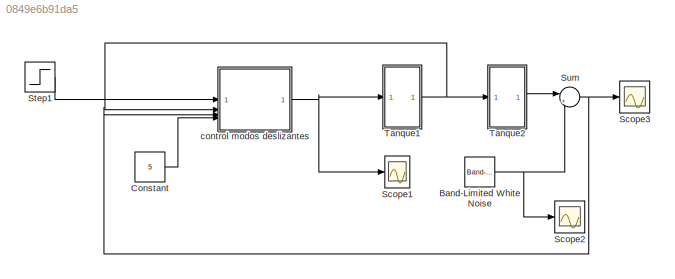
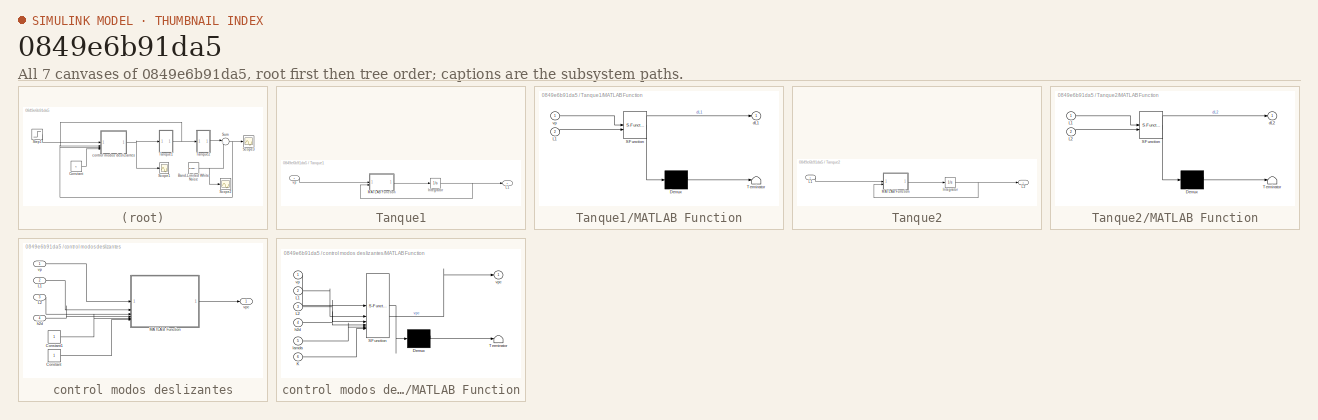
[diagram: thumbnail index - all 7 canvases of the model, root first then tree order]
MODEL slx_0849e6b91da5
KIND model
CONFIG AbsTol = auto
CONFIG EnableMultiTasking = off
CONFIG FixedStep = auto
CONFIG MaxStep = auto
CONFIG MinStep = auto
CONFIG RelTol = 1e-3
CONFIG SampleTimeConstraint = Unconstrained
CONFIG SolverName = VariableStepAuto
CONFIG StartTime = 0.0
CONFIG StopTime = 50
BLOCK [Reference] Band-Limited White Noise  REF=simulink/Sources/Band-Limited
White Noise
  SourceBlock = simulink/Sources/Band-Limited\nWhite Noise
  SourceType = Band-Limited White Noise.
BLOCK [Constant] Constant
  Value = 5
BLOCK [Scope] Scope1
  ActiveDisplayYMaximum = 28.288118686222941
  ActiveDisplayYMinimum = -29.991396434772103
  DataLoggingVariableName = ScopeData1
  Floating = off
  GraphicalSettings = {"Style":{"BackgroundColor":[0.12941176470588237,0.12941176470588237,0.12941176470588237],"AxesColor":[0.07058823529411765,0.07058823529411765,0.07058823529411765],"LabelsColor":[0.8509803921568627,0.8509803921568627,0.8509803921568627],"PreserveColors":false,"Visible":[true],"LineStyle":["-"],"LineWidth":[1.5],"BarWidth":[0.9],"LineColor":["auto"],"LineFaceAlpha":[1],"LineEdgeAlpha":[1],"Marker":...<+2033ch>
  MultipleDisplayCache = [{"MaxYLimMag":1599.3184971036487,"MaxYLimReal":28.288118686222941,"MinYLimMag":0,"MinYLimReal":-29.991396434772103,"PlotAsMagnitudePhase":false,"ShowGrid":true,"ShowLegend":false,"Title":"%<SignalLabel>","YLabel":""}]
  NumInputPorts = 1
  ScopeFrameLocation = window
  WasSavedAsWebScope = on
  WindowPosition = [23.000000,193.000000,560.000000,420.000000,]
BLOCK [Scope] Scope2
  ActiveDisplayYMaximum = 7.7257857094803253
  ActiveDisplayYMinimum = -3.4612563380497452
  ContainerLayout = {"WindowBounds":[745,216,717,473],"gridDimensions":{"w":1,"h":1},"tileCount":1,"tileCoverage":1,"columnWeights":1,"rowWeights":1,"tileOccupancy":{"children":[{"id":"/Scope3"},{"id":"/Scope2"}]}}
  DataLoggingVariableName = ScopeData2
  Floating = off
  GraphicalSettings = {"Style":{"BackgroundColor":[0.12941176470588237,0.12941176470588237,0.12941176470588237],"AxesColor":[0.07058823529411765,0.07058823529411765,0.07058823529411765],"LabelsColor":[0.8509803921568627,0.8509803921568627,0.8509803921568627],"PreserveColors":false,"Visible":[true],"LineStyle":["-"],"LineWidth":[1.5],"BarWidth":[0.9],"LineColor":["auto"],"LineFaceAlpha":[1],"LineEdgeAlpha":[1],"Marker":...<+2029ch>
  MultipleDisplayCache = [{"MaxYLimMag":1599.3184971036487,"MaxYLimReal":7.7257857094803253,"MinYLimMag":0,"MinYLimReal":-3.4612563380497452,"PlotAsMagnitudePhase":false,"ShowGrid":true,"ShowLegend":false,"Title":"%<SignalLabel>","YLabel":""}]
  NumInputPorts = 1
  ScopeFrameLocation = container
  WasSavedAsWebScope = on
  WindowPosition = [753.000000,183.000000,702.000000,435.000000,]
BLOCK [Scope] Scope3
  ActiveDisplayYMaximum = 7.7257857094803253
  ActiveDisplayYMinimum = -3.4612563380497452
  ContainerLayout = {"WindowBounds":[652,407,529,484]}
  Floating = off
  GraphicalSettings = {"Style":{"BackgroundColor":[0.12941176470588237,0.12941176470588237,0.12941176470588237],"AxesColor":[0.07058823529411765,0.07058823529411765,0.07058823529411765],"LabelsColor":[0.8509803921568627,0.8509803921568627,0.8509803921568627],"PreserveColors":false,"Visible":[true],"LineStyle":["-"],"LineWidth":[1.5],"BarWidth":[0.9],"LineColor":["auto"],"LineFaceAlpha":[1],"LineEdgeAlpha":[1],"Marker":...<+1987ch>
  MultipleDisplayCache = [{"MaxYLimMag":1599.3184971036487,"MaxYLimReal":7.7257857094803253,"MinYLimMag":0,"MinYLimReal":-3.4612563380497452,"PlotAsMagnitudePhase":false,"ShowGrid":true,"ShowLegend":false,"Title":"%<SignalLabel>","YLabel":""}]
  NumInputPorts = 1
  ScopeFrameLocation = container
  Visible = on
  WasSavedAsWebScope = on
  WindowPosition = [660.000000,-19.000000,514.000000,446.000000,]
BLOCK [Step] Step1
  After = 8
  SampleTime = 0
BLOCK [Sum] Sum
  Inputs = |++
BLOCK [SubSystem] Tanque1
BLOCK [Integrator] Tanque1/Integrator
BLOCK [Outport] Tanque1/L1
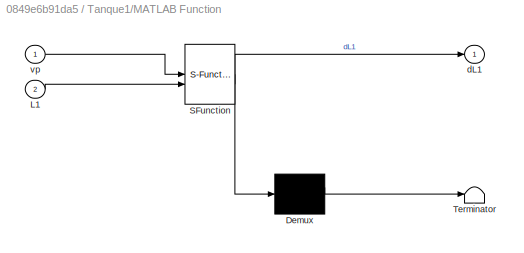
BLOCK [SubSystem] Tanque1/MATLAB Function
  ErrorFcn = Stateflow.Translate.translate
  PermitHierarchicalResolution = ExplicitOnly
  SFBlockType = MATLAB Function
  TreatAsAtomicUnit = on
BLOCK [Demux] Tanque1/MATLAB Function/ Demux 
  Outputs = 1
BLOCK [S-Function] Tanque1/MATLAB Function/ SFunction 
  EnableBusSupport = off
  FunctionName = sf_sfun
  PortCounts = [2 2]
  SFcnIsStateOwnerBlock = off
  SFunctionDeploymentMode = off
  Tag = Stateflow S-Function 2
BLOCK [Terminator] Tanque1/MATLAB Function/ Terminator 
BLOCK [Inport] Tanque1/MATLAB Function/L1
  Port = 2
BLOCK [Outport] Tanque1/MATLAB Function/dL1
BLOCK [Inport] Tanque1/MATLAB Function/vp
BLOCK [Inport] Tanque1/vp
BLOCK [SubSystem] Tanque2
BLOCK [Integrator] Tanque2/Integrator
BLOCK [Inport] Tanque2/L1
BLOCK [Outport] Tanque2/L2
BLOCK [SubSystem] Tanque2/MATLAB Function
  ErrorFcn = Stateflow.Translate.translate
  PermitHierarchicalResolution = ExplicitOnly
  SFBlockType = MATLAB Function
  TreatAsAtomicUnit = on
BLOCK [Demux] Tanque2/MATLAB Function/ Demux 
  Outputs = 1
BLOCK [S-Function] Tanque2/MATLAB Function/ SFunction 
  EnableBusSupport = off
  FunctionName = sf_sfun
  PortCounts = [2 2]
  SFcnIsStateOwnerBlock = off
  SFunctionDeploymentMode = off
  Tag = Stateflow S-Function 1
BLOCK [Terminator] Tanque2/MATLAB Function/ Terminator 
BLOCK [Inport] Tanque2/MATLAB Function/L1
BLOCK [Inport] Tanque2/MATLAB Function/L2
  Port = 2
BLOCK [Outport] Tanque2/MATLAB Function/dL2
BLOCK [SubSystem] control modos deslizantes
BLOCK [Constant] control modos deslizantes/Constant
BLOCK [Constant] control modos deslizantes/Constant1
BLOCK [Inport] control modos deslizantes/L1
  Port = 2
BLOCK [Inport] control modos deslizantes/L2
  Port = 3
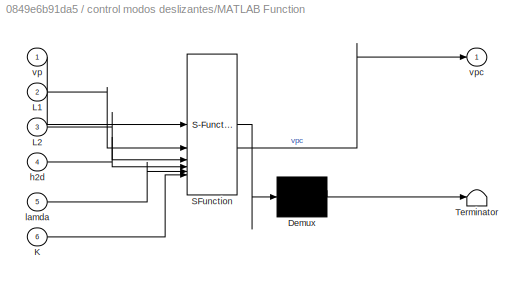
BLOCK [SubSystem] control modos deslizantes/MATLAB Function
  ErrorFcn = Stateflow.Translate.translate
  PermitHierarchicalResolution = ExplicitOnly
  SFBlockType = MATLAB Function
  TreatAsAtomicUnit = on
BLOCK [Demux] control modos deslizantes/MATLAB Function/ Demux 
  Outputs = 1
BLOCK [S-Function] control modos deslizantes/MATLAB Function/ SFunction 
  EnableBusSupport = off
  FunctionName = sf_sfun
  PortCounts = [6 2]
  SFcnIsStateOwnerBlock = off
  SFunctionDeploymentMode = off
  Tag = Stateflow S-Function 3
BLOCK [Terminator] control modos deslizantes/MATLAB Function/ Terminator 
BLOCK [Inport] control modos deslizantes/MATLAB Function/K
  Port = 6
BLOCK [Inport] control modos deslizantes/MATLAB Function/L1
  Port = 2
BLOCK [Inport] control modos deslizantes/MATLAB Function/L2
  Port = 3
BLOCK [Inport] control modos deslizantes/MATLAB Function/h2d
  Port = 4
BLOCK [Inport] control modos deslizantes/MATLAB Function/lamda
  Port = 5
BLOCK [Inport] control modos deslizantes/MATLAB Function/vp
BLOCK [Outport] control modos deslizantes/MATLAB Function/vpc
BLOCK [Inport] control modos deslizantes/h2d
  Port = 4
BLOCK [Inport] control modos deslizantes/vp
BLOCK [Outport] control modos deslizantes/vpc
NET Band-Limited White Noise:1 -> Scope2:1, Sum:2
LINE Constant:1 -> control modos deslizantes:4
LINE Step1:1 -> control modos deslizantes:1
NET Sum:1 -> Scope3:1, control modos deslizantes:3
NET Tanque1/Integrator:1 -> Tanque1/L1:1, Tanque1/MATLAB Function:2
LINE Tanque1/MATLAB Function:1 -> Tanque1/Integrator:1
LINE Tanque1/vp:1 -> Tanque1/MATLAB Function:1
NET Tanque1:1 -> Tanque2:1, control modos deslizantes:2
NET Tanque2/Integrator:1 -> Tanque2/L2:1, Tanque2/MATLAB Function:2
LINE Tanque2/L1:1 -> Tanque2/MATLAB Function:1
LINE Tanque2/MATLAB Function:1 -> Tanque2/Integrator:1
LINE Tanque2:1 -> Sum:1
LINE control modos deslizantes/Constant1:1 -> control modos deslizantes/MATLAB Function:5
LINE control modos deslizantes/Constant:1 -> control modos deslizantes/MATLAB Function:6
LINE control modos deslizantes/L1:1 -> control modos deslizantes/MATLAB Function:2
LINE control modos deslizantes/L2:1 -> control modos deslizantes/MATLAB Function:3
LINE control modos deslizantes/MATLAB Function:1 -> control modos deslizantes/vpc:1
LINE control modos deslizantes/h2d:1 -> control modos deslizantes/MATLAB Function:4
LINE control modos deslizantes/vp:1 -> control modos deslizantes/MATLAB Function:1
NET control modos deslizantes:1 -> Scope1:1, Tanque1:1
note: NET lines group one-source signal fan-out (src -> all destinations, sorted); 1:1 wires keep LINE
CHART Tanque2/MATLAB Function states=1 transitions=1
  STATE_LABEL 'eML_blk_kernel()'
  STATE_LABEL 'SCRIPT:\nfunction dL2 = fcn(L1, L2)\nif L2<0 \n   L2=0; \nend\nd1=0.635;\na1=pi*d1^2/4;\nD2=4.445;\nd2=0.47625;\nA2=pi*D2^2/4;\na2=pi*d2^2/4;\ng=980;\n\nQin=sqrt(2*g*L1)*a1;\nVout2=sqrt(2*g*L2);\nQout2=Vout2*a2;\n\ndL2 = (Qin-Qout2)/A2;\n'
CHART Tanque1/MATLAB Function states=1 transitions=1
  STATE_LABEL 'eML_blk_kernel()'
  STATE_LABEL 'SCRIPT:\nfunction dL1 = fcn(vp, L1)\n\nD1=4.445;\nd1=0.635;\nA1=pi*D1^2/4;\na1=pi*d1^2/4;\nKp=3.3;\ng=980;\n\nQi=vp*Kp;\nVout=sqrt(2*g*L1);\nQout=Vout*a1;\n\ndL1 = (Qi-Qout)/A1;\n'
CHART control modos deslizantes/MATLAB Function states=1 transitions=1
  STATE_LABEL 'eML_blk_kernel()'
  STATE_LABEL 'SCRIPT:\nfunction vpc = fcn(vp,L1,L2,h2d,lamda,K)\n\nx1=L2;\nx2=L1;\n\nD1=4.445;\nd1=0.635;\nA1=pi*D1^2/4;\na1=pi*d1^2/4;\nKp=3.3;\ng=980;\n\nD2=4.445;\nd2=0.47625;\nA2=pi*D2^2/4;\na2=pi*d2^2/4;\n\nB=a1*sqrt(2*g)/A2;\nB2=a2*sqrt(2*g)/A2;\n\ny=Kp/A1;\ny2=a1*sqrt(2*g)/A1;\n\nif L2<h2d\n    vpc=vp;\nelse\n\n    G=2*sqrt(x2)/(B*y);\n    F=B*y2/2 - B*B2*sqrt(x2)/(2*sqrt(x1)) + B2^2/2;\n    \n    e=x1-h2d;\n    de=B*sqrt(x2)-B2*sqrt(x...<+129ch>'
CHART  states=0 transitions=0
CHART  states=0 transitions=0
CHART  states=0 transitions=0
